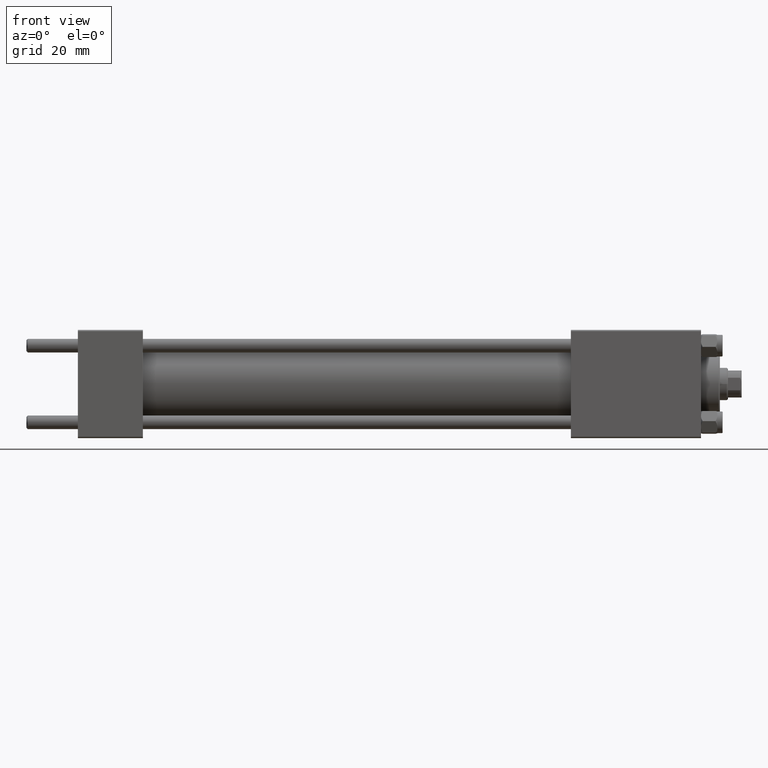
[diagram: clean part render]
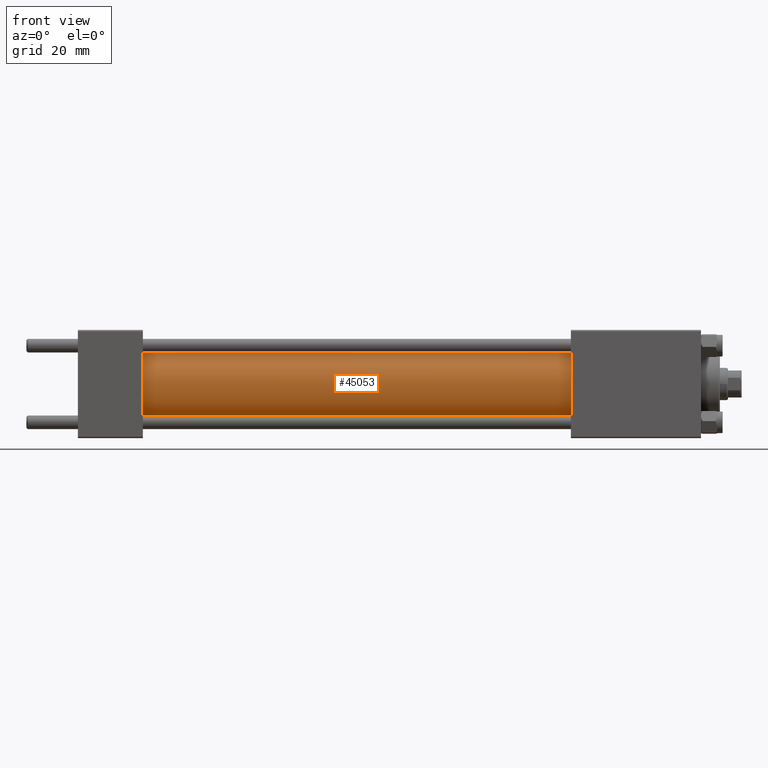
[diagram: same view with one face highlighted and labeled with its STEP entity id]
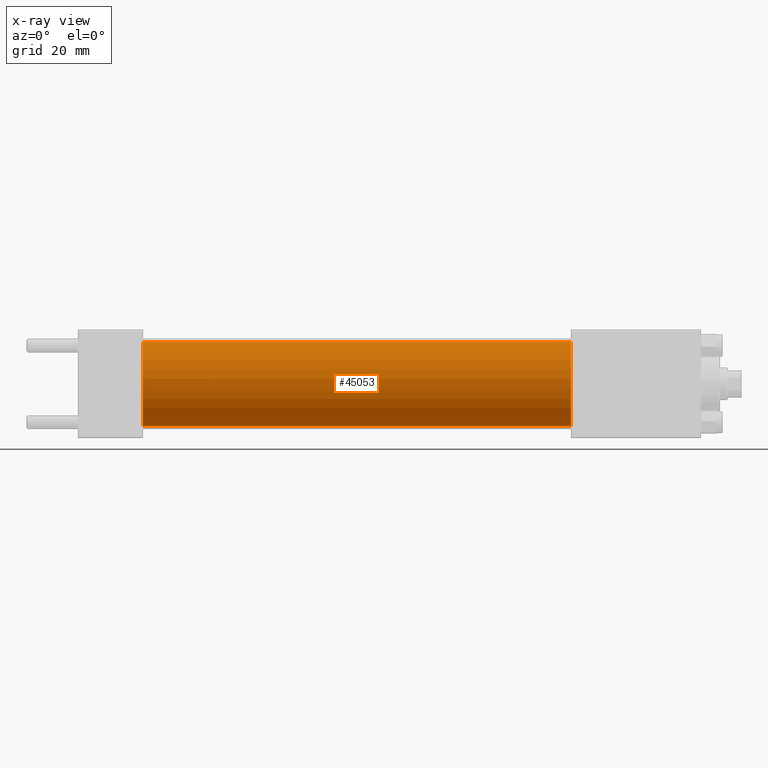
[diagram: x-ray of the same camera — body ghosted, the highlighted face saturated]
A machine part, front view. The second image highlights one B-rep face of the part: STEP entity #45053.
The next image is the same camera in x-ray: the body ghosted, the highlighted face saturated — about 0% of this face is hidden behind the body in this view.
In plain terms, the highlighted cylindrical surface (partial cylindrical patch) has radius 15.5 mm, axis along (-1, -0, -0).
Its self-contained STEP definition (entity closure, byte-faithful):
#1076 = CARTESIAN_POINT ( 'NONE',  ( 182.0000000000000000, 1.898202538678397557E-15, -15.50000000000000000 ) ) ;
#1182 = AXIS2_PLACEMENT_3D ( 'NONE', #13327, #35808, #47675 ) ;
#1364 = VERTEX_POINT ( 'NONE', #11517 ) ;
#3481 = CARTESIAN_POINT ( 'NONE',  ( 182.0000000000000000, 1.898202538678397557E-15, -15.50000000000000000 ) ) ;
#4755 = CYLINDRICAL_SURFACE ( 'NONE', #1182, 15.50000000000000000 ) ;
#6629 = VERTEX_POINT ( 'NONE', #1076 ) ;
#6818 = EDGE_CURVE ( 'NONE', #6629, #8428, #30226, .T. ) ;
#7394 = VERTEX_POINT ( 'NONE', #12157 ) ;
#8428 = VERTEX_POINT ( 'NONE', #33360 ) ;
#9475 = DIRECTION ( 'NONE',  ( 0.000000000000000000, 0.000000000000000000, -1.000000000000000000 ) ) ;
#10740 = ORIENTED_EDGE ( 'NONE', *, *, #14967, .T. ) ;
#11517 = CARTESIAN_POINT ( 'NONE',  ( 182.0000000000000000, 0.000000000000000000, 15.50000000000000000 ) ) ;
#12157 = CARTESIAN_POINT ( 'NONE',  ( 23.99999999999999289, 0.000000000000000000, 15.50000000000000000 ) ) ;
#13327 = CARTESIAN_POINT ( 'NONE',  ( 182.0000000000000000, 0.000000000000000000, 0.000000000000000000 ) ) ;
#14218 = EDGE_CURVE ( 'NONE', #1364, #6629, #27610, .T. ) ;
#14967 = EDGE_CURVE ( 'NONE', #7394, #8428, #34939, .T. ) ;
#16322 = AXIS2_PLACEMENT_3D ( 'NONE', #47866, #44060, #9475 ) ;
#16671 = ORIENTED_EDGE ( 'NONE', *, *, #24034, .T. ) ;
#17875 = DIRECTION ( 'NONE',  ( 0.000000000000000000, 0.000000000000000000, 1.000000000000000000 ) ) ;
#17899 = LINE ( 'NONE', #34054, #43974 ) ;
#18860 = DIRECTION ( 'NONE',  ( -1.000000000000000000, -0.000000000000000000, -0.000000000000000000 ) ) ;
#21175 = DIRECTION ( 'NONE',  ( 1.000000000000000000, 0.000000000000000000, 0.000000000000000000 ) ) ;
#24034 = EDGE_CURVE ( 'NONE', #1364, #7394, #17899, .T. ) ;
#27610 = CIRCLE ( 'NONE', #16322, 15.50000000000000000 ) ;
#29023 = ORIENTED_EDGE ( 'NONE', *, *, #6818, .F. ) ;
#29140 = VECTOR ( 'NONE', #18860, 1000.000000000000000 ) ;
#29756 = DIRECTION ( 'NONE',  ( -1.000000000000000000, -0.000000000000000000, -0.000000000000000000 ) ) ;
#30226 = LINE ( 'NONE', #3481, #29140 ) ;
#32526 = FACE_OUTER_BOUND ( 'NONE', #37152, .T. ) ;
#33360 = CARTESIAN_POINT ( 'NONE',  ( 23.99999999999999289, 1.898202538678397557E-15, -15.50000000000000000 ) ) ;
#34054 = CARTESIAN_POINT ( 'NONE',  ( 182.0000000000000000, 0.000000000000000000, 15.50000000000000000 ) ) ;
#34939 = CIRCLE ( 'NONE', #37348, 15.50000000000000000 ) ;
#35808 = DIRECTION ( 'NONE',  ( -1.000000000000000000, -0.000000000000000000, -0.000000000000000000 ) ) ;
#36196 = ORIENTED_EDGE ( 'NONE', *, *, #14218, .F. ) ;
#37152 = EDGE_LOOP ( 'NONE', ( #29023, #36196, #16671, #10740 ) ) ;
#37348 = AXIS2_PLACEMENT_3D ( 'NONE', #44647, #21175, #17875 ) ;
#43974 = VECTOR ( 'NONE', #29756, 1000.000000000000000 ) ;
#44060 = DIRECTION ( 'NONE',  ( 1.000000000000000000, 0.000000000000000000, 0.000000000000000000 ) ) ;
#44647 = CARTESIAN_POINT ( 'NONE',  ( 23.99999999999999289, 0.000000000000000000, 0.000000000000000000 ) ) ;
#45053 = ADVANCED_FACE ( 'NONE', ( #32526 ), #4755, .T. ) ;
#47675 = DIRECTION ( 'NONE',  ( 0.000000000000000000, 0.000000000000000000, 1.000000000000000000 ) ) ;
#47866 = CARTESIAN_POINT ( 'NONE',  ( 182.0000000000000000, 0.000000000000000000, 0.000000000000000000 ) ) ;